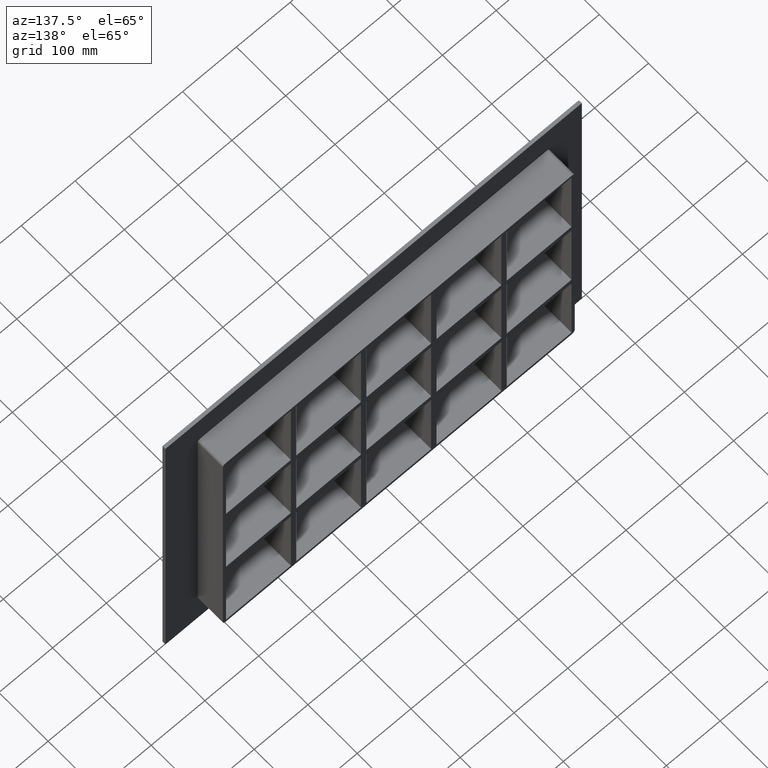
[diagram: clean part render]
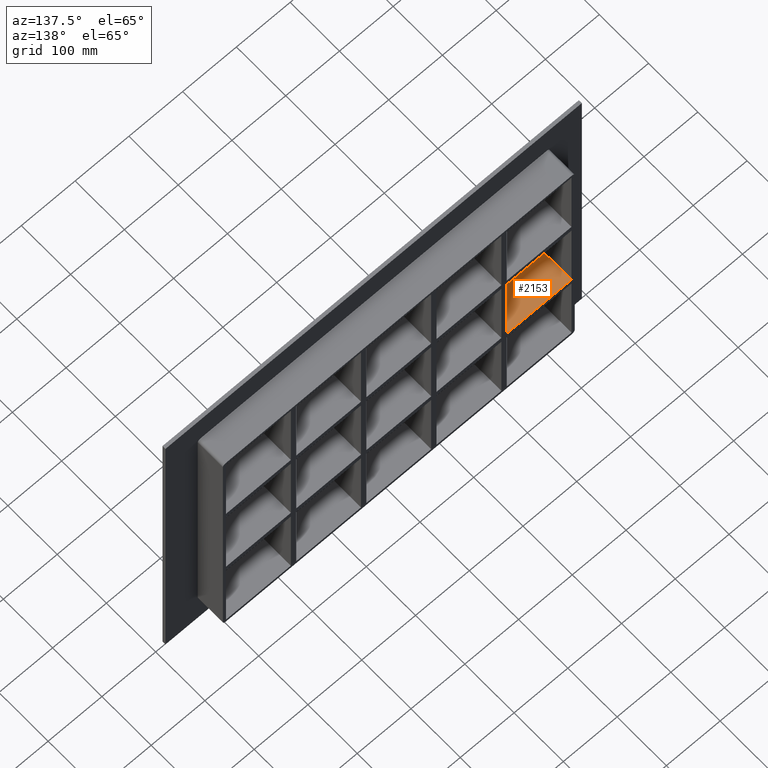
[diagram: same view with one face highlighted and labeled with its STEP entity id]
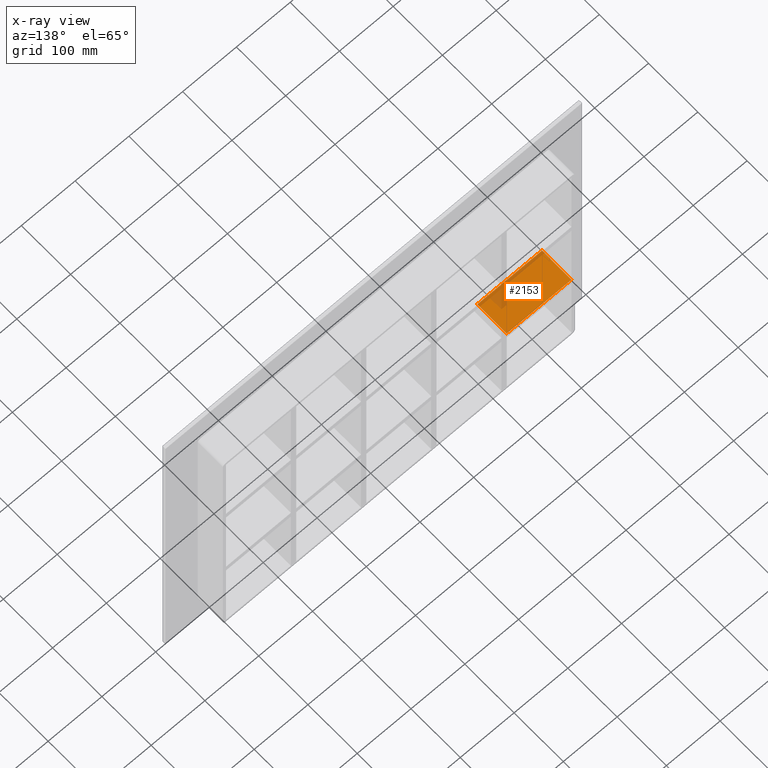
[diagram: x-ray of the same camera — body ghosted, the highlighted face saturated]
A machine part, auxiliary view. The second image highlights one B-rep face of the part: STEP entity #2153.
The next image is the same camera in x-ray: the body ghosted, the highlighted face saturated — about 15% of this face is hidden behind the body in this view.
In plain terms, the highlighted planar face has unit normal (0, 0, 1).
Its self-contained STEP definition (entity closure, byte-faithful):
#784=CARTESIAN_POINT('',(-200.75000000000125,57.0,-79.749999999999943));
#785=VERTEX_POINT('',#784);
#792=CARTESIAN_POINT('',(-200.75000000000125,-3.0,-79.749999999999943));
#793=VERTEX_POINT('',#792);
#794=CARTESIAN_POINT('',(-200.75000000000128,57.0,-79.749999999999943));
#795=DIRECTION('',(0.0,-1.0,0.0));
#796=VECTOR('',#795,60.0);
#797=LINE('',#794,#796);
#798=EDGE_CURVE('',#785,#793,#797,.T.);
#915=CARTESIAN_POINT('',(-321.24999999999966,57.0,-79.749999999999943));
#916=VERTEX_POINT('',#915);
#923=CARTESIAN_POINT('',(-321.24999999999966,57.0,-79.749999999999943));
#924=DIRECTION('',(1.0,0.0,0.0));
#925=VECTOR('',#924,120.49999999999841);
#926=LINE('',#923,#925);
#927=EDGE_CURVE('',#916,#785,#926,.T.);
#1836=CARTESIAN_POINT('',(-321.24999999999966,-3.0,-79.749999999999943));
#1837=VERTEX_POINT('',#1836);
#1838=CARTESIAN_POINT('',(-321.24999999999966,-3.0,-79.749999999999943));
#1839=DIRECTION('',(1.0,0.0,0.0));
#1840=VECTOR('',#1839,120.49999999999841);
#1841=LINE('',#1838,#1840);
#1842=EDGE_CURVE('',#1837,#793,#1841,.T.);
#2137=CARTESIAN_POINT('',(-321.24999999999966,-3.0,-79.749999999999943));
#2138=DIRECTION('',(0.0,0.0,1.0));
#2139=DIRECTION('',(1.0,0.0,0.0));
#2140=AXIS2_PLACEMENT_3D('',#2137,#2138,#2139);
#2141=PLANE('',#2140);
#2142=ORIENTED_EDGE('',*,*,#798,.F.);
#2143=ORIENTED_EDGE('',*,*,#927,.F.);
#2144=CARTESIAN_POINT('',(-321.25,-3.0,-79.749999999999943));
#2145=DIRECTION('',(0.0,1.0,0.0));
#2146=VECTOR('',#2145,60.000000000000007);
#2147=LINE('',#2144,#2146);
#2148=EDGE_CURVE('',#1837,#916,#2147,.T.);
#2149=ORIENTED_EDGE('',*,*,#2148,.F.);
#2150=ORIENTED_EDGE('',*,*,#1842,.T.);
#2151=EDGE_LOOP('',(#2142,#2143,#2149,#2150));
#2152=FACE_OUTER_BOUND('',#2151,.T.);
#2153=ADVANCED_FACE('',(#2152),#2141,.T.);